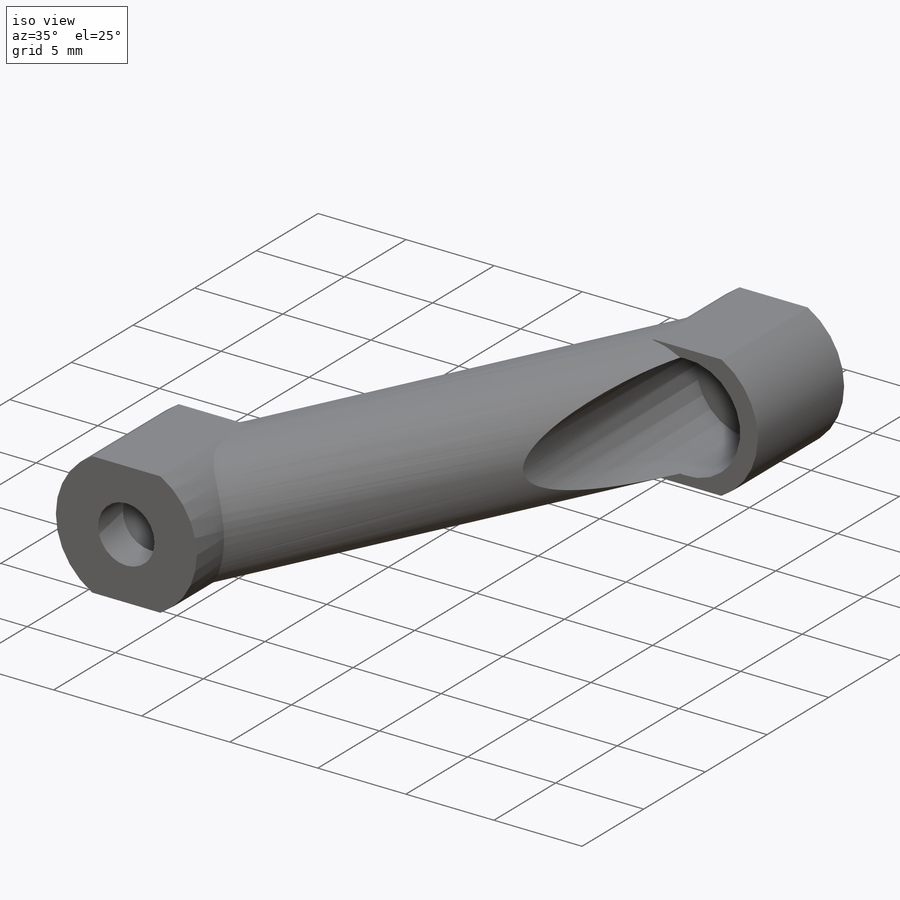
[diagram: iso view]
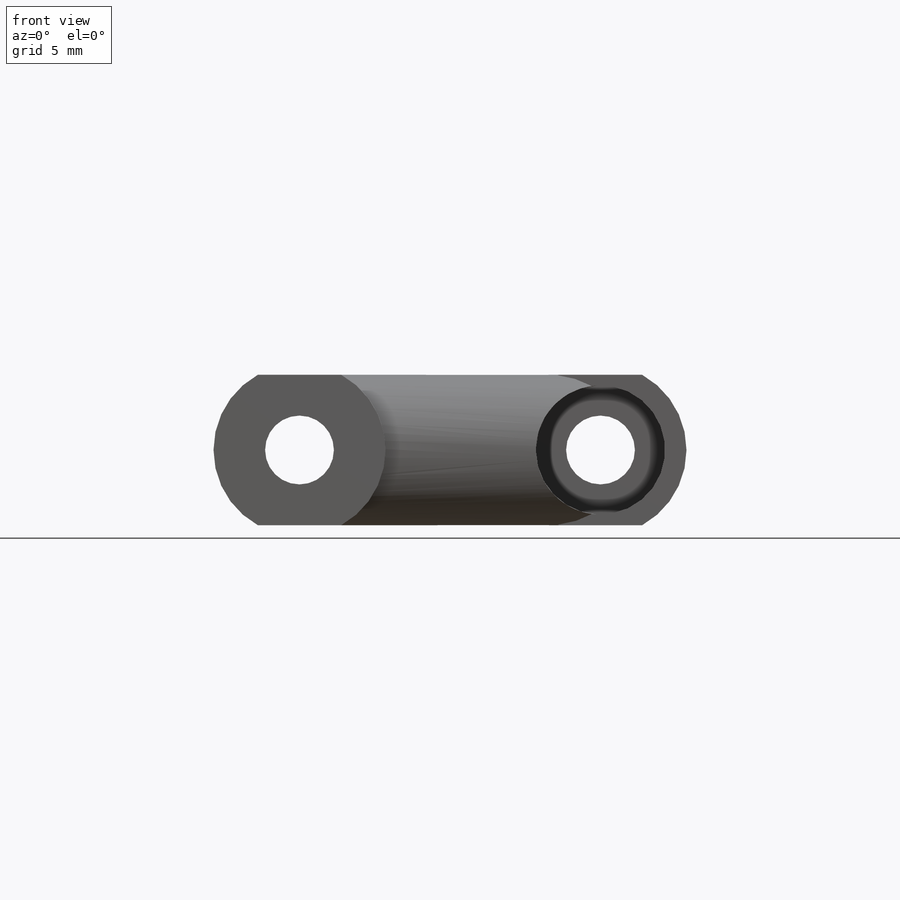
[diagram: front view]
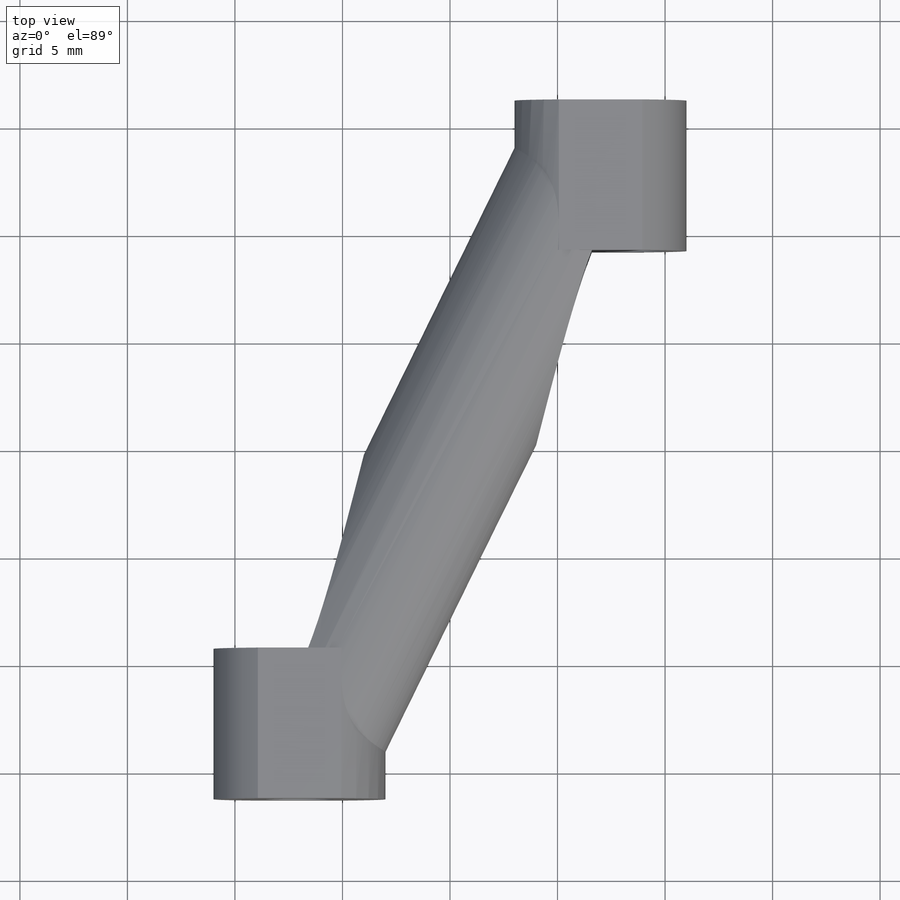
[diagram: top view]
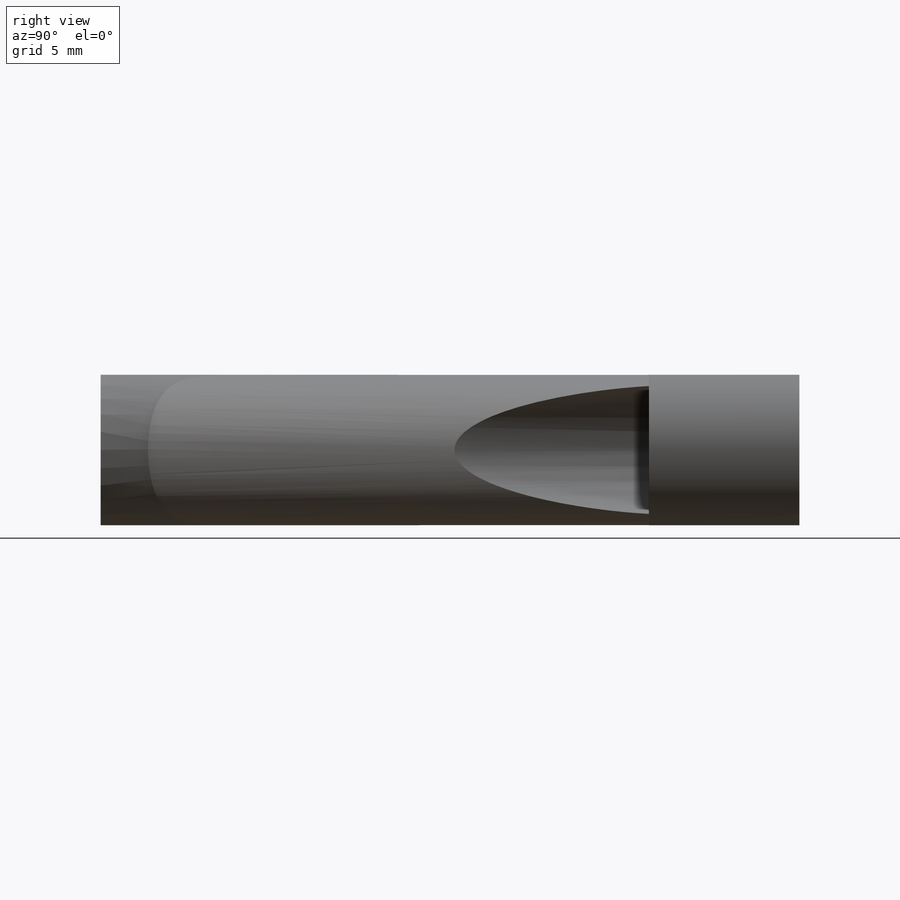
[diagram: right view]
SOLIDWORKS PART (.sldprt)
format: sldprt  version: not decoded by parser v0  size: 253,952 bytes
history: native  units: mm
features: sketch x8, plane x5, cut_extrude x4, extrude x3, material x1, delete_body x1 (+12 scaffold rows collapsed)
feature tree (34):
  scaffold x12  (default folders/planes/origin — collapsed)
  material  "Material <not specified>"
  sketch  "Sketch1"  dims[c1.D1=14.0mm c1.D2=32.5mm c1.D3=2.0mm c1.D4=2.0mm c2.D3=2.0mm c2.D4=2.0mm]
  plane  "Plane1"
  plane  "Plane2"
  sketch  "Sketch2"  dims[D1=8.0mm]
  sketch  "Sketch3"
  extrude  "Boss-Extrude1"  Depth=5mm
  extrude  "Boss-Extrude2"  Depth=5mm
  plane  "Plane4"
  sketch  "Sketch4"  dims[D1=7.0mm]
  extrude  "Boss-Extrude3"  [1 undecoded]
  sketch  "Sketch5"  dims[D1=6.0mm]
  cut_extrude  "Cut-Extrude1"  Depth=5mm
  sketch  "Sketch6"  dims[D1=6.0mm]
  cut_extrude  "Cut-Extrude2"  Depth=5mm
  sketch  "Sketch7"  dims[D1=3.2mm]
  cut_extrude  "Cut-Extrude3"  [1 undecoded]
  sketch  "Sketch8"  dims[D1=3.2mm]
  cut_extrude  "Cut-Extrude4"  [1 undecoded]
  plane  "Plane5"  Offset=3.5mm
  plane  "Plane6"  Offset=3.5mm
  delete_body  "Body-Delete1"
decode coverage: 11 of 16 modeling features carry decoded parameters
note: 3 parameter values undecoded
summary: no parameter record found for 3 features
note: suppression state not decoded; provenance and decode notes live in map.json
